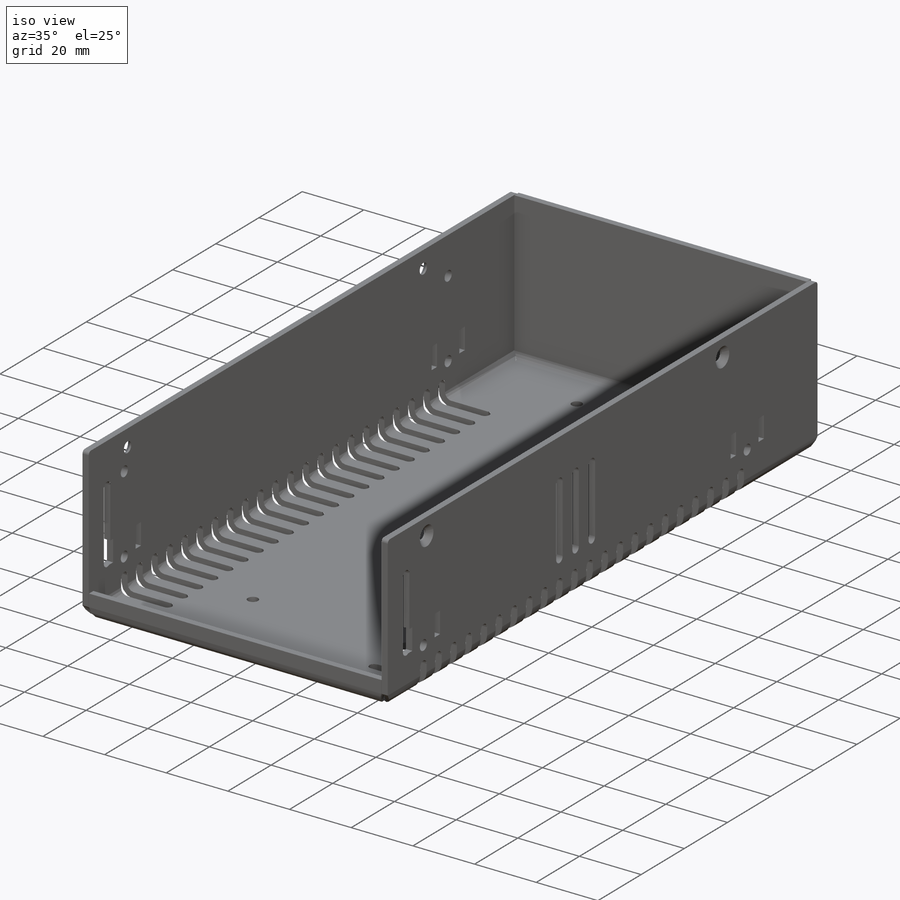
[diagram: iso view]
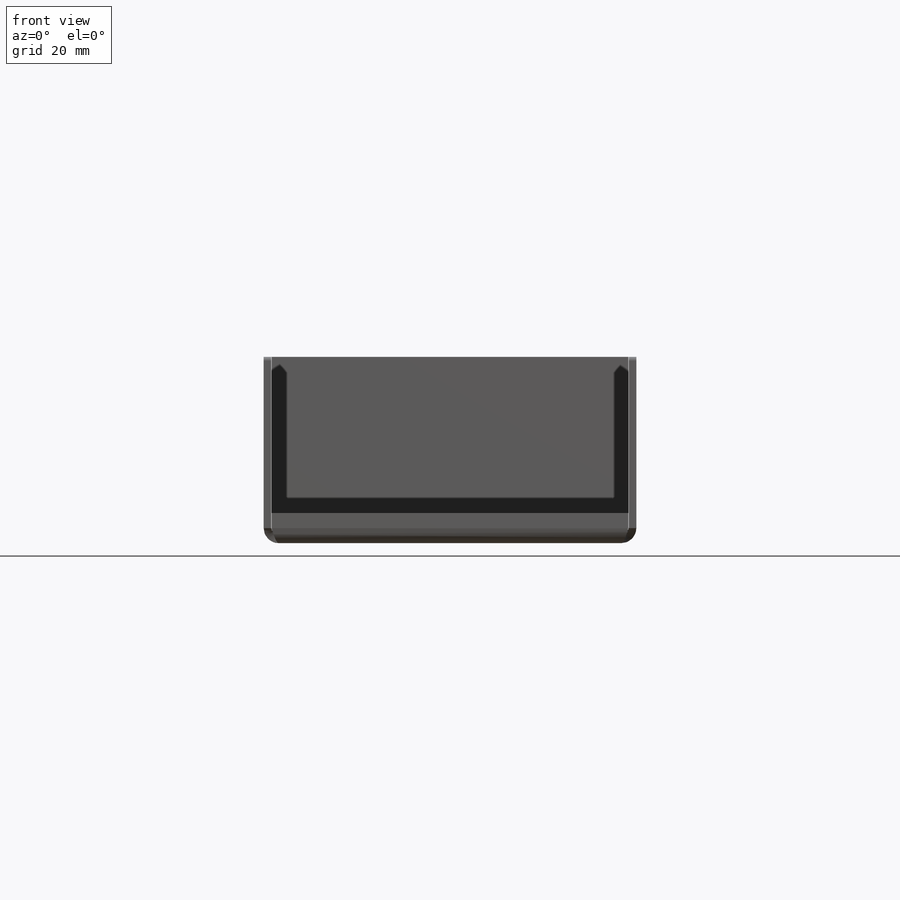
[diagram: front view]
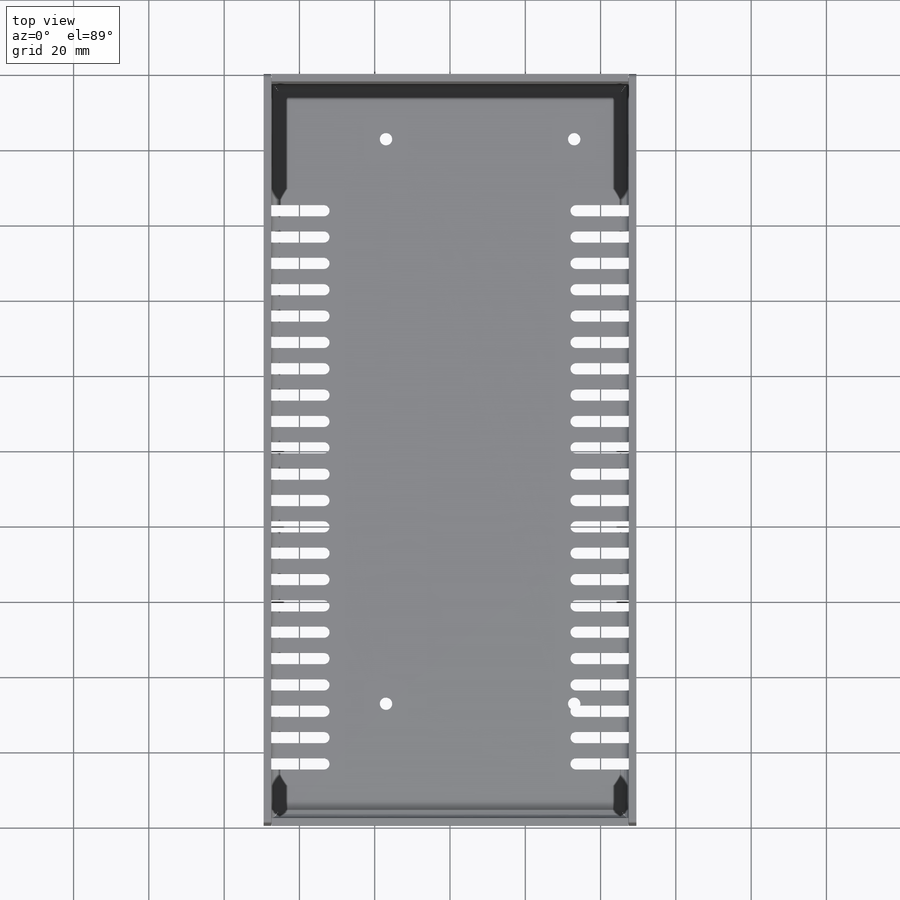
[diagram: top view]
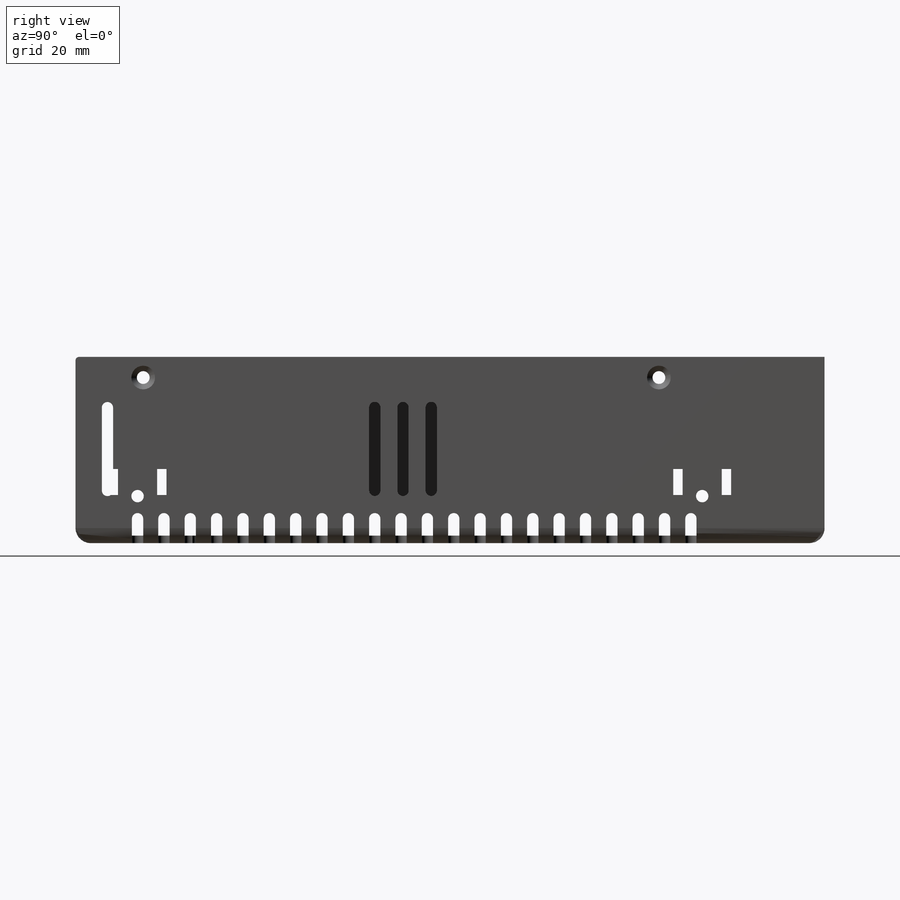
[diagram: right view]
SOLIDWORKS PART (.sldprt)
format: sldprt  version: not decoded by parser v0  size: 1,886,208 bytes
history: native  units: mm
features: sketch x63, sheet_metal_op x19, thread x15, fillet x15, cut_extrude x6, hole x6, material x1, plane x1, mirror x1 + 56 further entries (+13 scaffold rows collapsed; 15 parser-record rows omitted)
feature tree (211):
  scaffold x13  (default folders/planes/origin — collapsed)
  material  "3003 Alloy"
  sketch  "Sketch1"  dims[c1.D1=99.0mm c1.D2=199.0mm c2.D1=0.7366mm c2.D2=0.5 c2.D3=0.0mm c2.D6=500.0mm]
  sheet_metal_op  "Base-Flange1"
  sketch  "Sketch14"  dims[D1=49.5mm]
  sketch  "Sketch15"  dims[D1=49.5mm]
  sketch  "Sketch16"  dims[D1=49.5mm]
  sketch  "Sketch17"  dims[c1.D1=49.5mm c2.D1=2.0mm c2.D4=90.0deg c2.D5=1.0 c2.D8=1.0mm c2.D9=1.0mm]
  sheet_metal_op  "EdgeBend2"
  sheet_metal_op  "EdgeBend3"
  sheet_metal_op  "EdgeBend4"
  sketch  "Sketch18"  dims[D1=8.0mm]
  cut_extrude  "Cut-Extrude1"  [1 undecoded]
  sketch  "Sketch20"  dims[D1=1.5mm D2=6.5mm D3=29.5mm D5=7.0mm D4=22.0]
  cut_extrude  "Cut-Extrude2"  [1 undecoded]
  plane  "Plane1"
  sketch  "Sketch21"  dims[D1=16.0mm D2=22.0]
  cut_extrude  "Cut-Extrude3"  [1 undecoded]
  mirror  "Mirror1"
  sketch  "Sketch22"  dims[c1.D2=1.5mm c1.D3=1.5mm c1.D1=22.0mm c1.D4=7.0mm c1.D5=13.5mm c1.D6=7.5mm c2.D1=22.0mm c2.D3=8.5mm c2.D4=25.0mm]
  cut_extrude  "Cut-Extrude4"  [1 undecoded]
  sketch  "Sketch23"  dims[c1.D2=7.0mm c1.D3=71.0mm c1.D1=77.0mm c2.D2=7.5mm c2.D3=7.0mm c3.D2=3.0]
  cut_extrude  "Cut-Extrude5"  [1 undecoded]
  sketch  "Sketch28"  dims[D1=102.0mm D2=43.5mm D3=15.0mm]
  hole  "CSK for M3 Flat Head Machine Screw1"  Diameter=3.4mm Depth=2mm
  sketch  "3DSketch1"
  sketch  "Sketch29"  dims[hole-wizard template sketch: 59 standard entries collapsed; hole parameters above]
  sketch  "Sketch30"
  hole  "CSK for M3 Flat Head Machine Screw2"  Diameter=3.4mm Depth=2mm
  sketch  "3DSketch2"
  sketch  "Sketch31"  dims[hole-wizard template sketch: 59 standard entries collapsed; hole parameters above]
  sketch  "Sketch32"  dims[D1=44.0mm D2=90.5mm D3=12.25mm]
  sketch  "Sketch34"  dims[D1=12.5mm D2=117.0mm D3=57.0mm D4=12.5mm D5=25.0mm]
  hole  "M4x0.7 Tapped Hole1"  Diameter=3.3mm Depth=2mm
  sketch  "3DSketch4"  dims[D1=12.5mm D2=25.0mm]
  sketch  "Sketch35"  dims[hole-wizard template sketch: 60 standard entries collapsed; hole parameters kept: c18.Thru Tap Drill Depth=2.0mm]
  thread  "Hole Thread1"  Diameter=4mm  [1 undecoded]
  thread  "Hole Thread2"  Diameter=4mm  [1 undecoded]
  thread  "Hole Thread11"  Diameter=4mm  [1 undecoded]
  thread  "Hole Thread12"  Diameter=4mm  [1 undecoded]
  sketch  "Sketch36"  dims[D1=25.0mm D2=12.5mm]
  hole  "M4x0.7 Tapped Hole2"  Diameter=3.3mm Depth=99mm
  sketch  "3DSketch5"
  sketch  "Sketch37"  dims[hole-wizard template sketch: 60 standard entries collapsed; hole parameters kept: c18.Thru Tap Drill Depth=99.0mm]
  thread  "Hole Thread3"  Diameter=4mm  [1 undecoded]
  thread  "Hole Thread6"  Diameter=4mm  [1 undecoded]
  sketch  "Sketch38"  dims[c1.D1=50.0mm c1.D2=168.0mm c1.D3=32.5mm c1.D4=20.0mm c2.D3=10.0mm c2.D1=79.0mm c2.D5=51.0mm c2.D6=35.0mm c2.D7=49.5mm c2.D8=70.0mm c2.D9=65.0mm]
  hole  "M3.5x0.6 Tapped Hole1"  Diameter=2.9mm Depth=2mm
  sketch  "3DSketch6"  dims[c1.D1=51.0mm c1.D2=39.5mm c1.D3=35.0mm c1.D4=~49.910108mm c1.D6=50.0mm c1.D5=~114.96666mm c2.D4=115.0mm]
  sketch  "Sketch39"  dims[hole-wizard template sketch: 59 standard entries collapsed; hole parameters kept: c18.Thru Tap Drill Dia.=2.9mm c18.Thru Tap Drill Depth=2.0mm]
  thread  "Hole Thread7"  Diameter=3.5mm  [1 undecoded]
  thread  "Hole Thread8"  Diameter=3.5mm  [1 undecoded]
  thread  "Hole Thread10"  Diameter=3.5mm  [1 undecoded]
  thread  "Hole Thread13"  Diameter=3.5mm  [1 undecoded]
  thread  "Hole Thread14"  Diameter=3.5mm  [1 undecoded]
  thread  "Hole Thread17"  Diameter=3.5mm  [1 undecoded]
  thread  "Hole Thread18"  Diameter=3.5mm  [1 undecoded]
  sketch  "Sketch47"  dims[D1=70.0mm D2=65.0mm D3=49.5mm]
  hole  "M4x0.7 Tapped Hole3"  Diameter=3.3mm Depth=2mm
  sketch  "3DSketch10"
  sketch  "Sketch49"  dims[hole-wizard template sketch: 60 standard entries collapsed; hole parameters kept: c18.Thru Tap Drill Depth=2.0mm]
  thread  "Hole Thread19"  Diameter=4mm  [1 undecoded]
  thread  "Hole Thread20"  Diameter=4mm  [1 undecoded]
  sketch  "Sketch40"  dims[D1=6.9mm D2=7.2mm D3=13.0mm D4=1.5mm]
  cut_extrude  "Cut-Extrude6"  [1 undecoded]
  sketch  "Sketch45"  dims[D1=95.0mm D2=10.0mm D3=177.5mm D4=27.5mm D5=90.0mm D6=40.5mm D7=19.0mm D8=37.5mm]
  fillet  "Fillet1"  Radius=1mm
  sketch  "Bend-Lines1"
  sketch  "Bounding-Box1"
  sheet_metal_op  "Sheet-Metal1"
  "Flat-Pattern1"
  sketch  "Bend-Lines2"
  sketch  "Bounding-Box2"
  parser-record x15  (decoder bookkeeping rows leaked as tree rows — omitted from the tree; the rows remain in map.json)
  fillet  "Sheet-Metal2"  Radius=0.7366mm
  sheet_metal_op  "Flat-Pattern1"
  sketch  "Bend-Lines2"
  sketch  "Bounding-Box2"
  "Flatten-<EdgeBend2>1"
  "Flatten-<EdgeBend3>1"
  "Flatten-<EdgeBend4>1"
  fillet  "Sheet-Metal3"  Radius=0.7366mm
  sheet_metal_op  "Flat-Pattern1"
  sketch  "Bend-Lines2"
  sketch  "Bounding-Box2"
  "Flatten-<EdgeBend1>1"
  "Flatten-<EdgeBend2>1"
  "Flatten-<EdgeBend3>1"
  "Flatten-<EdgeBend4>1"
  fillet  "Sheet-Metal4"  Radius=0.7366mm
  sheet_metal_op  "Flat-Pattern1"
  sketch  "Bend-Lines2"
  sketch  "Bounding-Box2"
  "Flatten-<EdgeBend1>1"
  "Flatten-<EdgeBend2>1"
  "Flatten-<EdgeBend3>1"
  "Flatten-<EdgeBend4>1"
  fillet  "Sheet-Metal5"  Radius=0.7366mm
  sheet_metal_op  "Flat-Pattern1"
  sketch  "Bend-Lines2"
  sketch  "Bounding-Box2"
  "Flatten-<EdgeBend1>1"
  "Flatten-<EdgeBend2>1"
  "Flatten-<EdgeBend3>1"
  "Flatten-<EdgeBend4>1"
  fillet  "Sheet-Metal6"  Radius=0.7366mm
  sheet_metal_op  "Flat-Pattern1"
  sketch  "Bend-Lines2"
  sketch  "Bounding-Box2"
  "Flatten-<EdgeBend1>1"
  "Flatten-<EdgeBend2>1"
  "Flatten-<EdgeBend3>1"
  "Flatten-<EdgeBend4>1"
  fillet  "Sheet-Metal7"  Radius=0.7366mm
  sheet_metal_op  "Flat-Pattern1"
  sketch  "Bend-Lines2"
  sketch  "Bounding-Box2"
  "Flatten-<EdgeBend1>1"
  "Flatten-<EdgeBend2>1"
  "Flatten-<EdgeBend3>1"
  "Flatten-<EdgeBend4>1"
  fillet  "Sheet-Metal8"  Radius=0.7366mm
  sheet_metal_op  "Flat-Pattern1"
  sketch  "Bend-Lines2"
  sketch  "Bounding-Box2"
  "Flatten-<EdgeBend1>1"
  "Flatten-<EdgeBend2>1"
  "Flatten-<EdgeBend3>1"
  "Flatten-<EdgeBend4>1"
  fillet  "Sheet-Metal9"  Radius=0.7366mm
  sheet_metal_op  "Flat-Pattern1"
  sketch  "Bend-Lines2"
  sketch  "Bounding-Box2"
  "Flatten-<EdgeBend1>1"
  "Flatten-<EdgeBend2>1"
  "Flatten-<EdgeBend3>1"
  "Flatten-<EdgeBend4>1"
  fillet  "Sheet-Metal10"  Radius=0.7366mm
  sheet_metal_op  "Flat-Pattern1"
  sketch  "Bend-Lines2"
  sketch  "Bounding-Box2"
  "Flatten-<EdgeBend1>1"
  "Flatten-<EdgeBend2>1"
  "Flatten-<EdgeBend3>1"
  "Flatten-<EdgeBend4>1"
  fillet  "Sheet-Metal12"  Radius=0.7366mm
  sheet_metal_op  "Flat-Pattern1"
  sketch  "Bend-Lines2"
  sketch  "Bounding-Box2"
  "Flatten-<EdgeBend1>1"
  "Flatten-<EdgeBend2>1"
  "Flatten-<EdgeBend3>1"
  "Flatten-<EdgeBend4>1"
  fillet  "Sheet-Metal13"  Radius=0.7366mm
  sheet_metal_op  "Flat-Pattern1"
  sketch  "Bend-Lines2"
  sketch  "Bounding-Box2"
  "Flatten-<EdgeBend1>1"
  "Flatten-<EdgeBend2>1"
  "Flatten-<EdgeBend3>1"
  "Flatten-<EdgeBend4>1"
  fillet  "Sheet-Metal14"  Radius=0.7366mm
  sheet_metal_op  "Flat-Pattern1"
  sketch  "Bend-Lines2"
  sketch  "Bounding-Box2"
  "Flatten-<EdgeBend1>1"
  "Flatten-<EdgeBend2>1"
  "Flatten-<EdgeBend3>1"
  "Flatten-<EdgeBend4>1"
  fillet  "Sheet-Metal15"  Radius=0.7366mm
  sheet_metal_op  "Flat-Pattern1"
  sketch  "Bend-Lines2"
  sketch  "Bounding-Box2"
  "Flatten-<EdgeBend1>1"
  "Flatten-<EdgeBend2>1"
  "Flatten-<EdgeBend3>1"
  "Flatten-<EdgeBend4>1"
  fillet  "Sheet-Metal19"  Radius=0.7366mm
  sheet_metal_op  "Flat-Pattern1"
  sketch  "Bend-Lines2"
  sketch  "Bounding-Box2"
  "Flatten-<EdgeBend1>1"
  "Flatten-<EdgeBend2>1"
  "Flatten-<EdgeBend3>1"
  "Flatten-<EdgeBend4>1"
decode coverage: 62 of 125 modeling features carry decoded parameters; 56 rows unclassified (native names shown)
note: ~ marks probable driven/reference dimensions
note: 21 parameter values undecoded
summary: no parameter record found for 6 features; Diameter pulled from absorbed wizard sketch
note: suppression state not decoded; provenance and decode notes live in map.json
